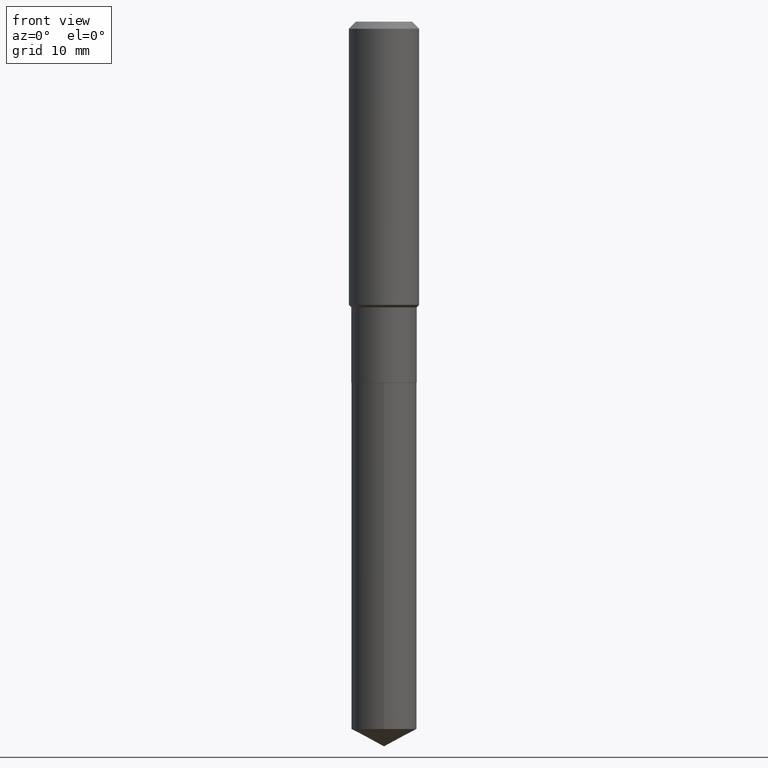
[diagram: clean part render]
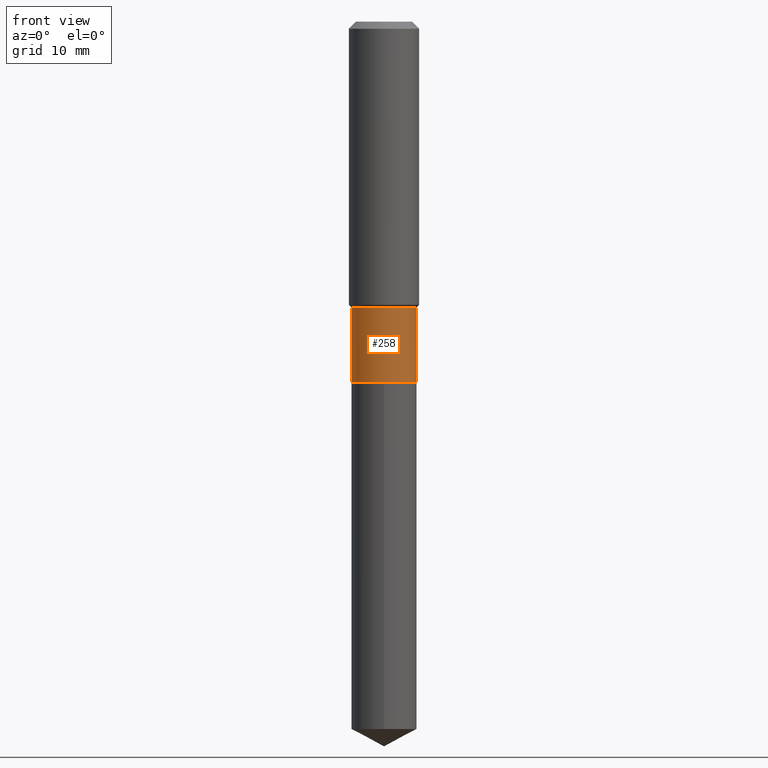
[diagram: same view with one face highlighted and labeled with its STEP entity id]
A machine part, front view. The second image highlights one B-rep face of the part: STEP entity #258.
In plain terms, the highlighted cylindrical surface (edge-blend (fillet) strip) has radius 4.6495 mm, axis along (-0, 0, 1).
Its self-contained STEP definition (entity closure, byte-faithful):
#2 = FACE_OUTER_BOUND ( 'NONE', #45, .T. ) ;
#21 = CIRCLE ( 'NONE', #154, 0.1830499999999999905 ) ;
#29 = LINE ( 'NONE', #485, #479 ) ;
#37 = CARTESIAN_POINT ( 'NONE',  ( 4.937646066568409466E-29, -7.049649971258195757E-15, -2.019099999999999895 ) ) ;
#45 = EDGE_LOOP ( 'NONE', ( #155, #63, #422, #217 ) ) ;
#54 = DIRECTION ( 'NONE',  ( -2.445468806185136877E-29, 3.491481338843145188E-15, 1.000000000000000000 ) ) ;
#63 = ORIENTED_EDGE ( 'NONE', *, *, #305, .T. ) ;
#79 = VERTEX_POINT ( 'NONE', #442 ) ;
#87 = LINE ( 'NONE', #390, #109 ) ;
#103 = EDGE_CURVE ( 'NONE', #400, #79, #29, .T. ) ;
#107 = DIRECTION ( 'NONE',  ( -2.445468806185136597E-29, 3.491481338843145583E-15, 1.000000000000000000 ) ) ;
#109 = VECTOR ( 'NONE', #54, 39.37007874015748143 ) ;
#122 = DIRECTION ( 'NONE',  ( -2.445468806185136597E-29, 3.491481338843145583E-15, 1.000000000000000000 ) ) ;
#141 = DIRECTION ( 'NONE',  ( -2.445468806185136877E-29, 3.491481338843145188E-15, 1.000000000000000000 ) ) ;
#142 = DIRECTION ( 'NONE',  ( 1.000000000000000000, -6.982962677686265922E-15, 4.876176775795935232E-29 ) ) ;
#145 = DIRECTION ( 'NONE',  ( 1.000000000000000000, -6.982962677686265922E-15, 0.000000000000000000 ) ) ;
#154 = AXIS2_PLACEMENT_3D ( 'NONE', #37, #187, #145 ) ;
#155 = ORIENTED_EDGE ( 'NONE', *, *, #435, .F. ) ;
#187 = DIRECTION ( 'NONE',  ( -2.445468806185136597E-29, 3.491481338843145583E-15, 1.000000000000000000 ) ) ;
#201 = DIRECTION ( 'NONE',  ( 1.000000000000000000, -6.982962677686267499E-15, 0.000000000000000000 ) ) ;
#203 = CIRCLE ( 'NONE', #474, 0.1830499999999999350 ) ;
#217 = ORIENTED_EDGE ( 'NONE', *, *, #399, .F. ) ;
#235 = VERTEX_POINT ( 'NONE', #265 ) ;
#258 = ADVANCED_FACE ( 'NONE', ( #2 ), #414, .T. ) ;
#265 = CARTESIAN_POINT ( 'NONE',  ( -0.1830499999999999350, -5.014917541957560996E-15, -1.598600000000000021 ) ) ;
#279 = VERTEX_POINT ( 'NONE', #307 ) ;
#281 = AXIS2_PLACEMENT_3D ( 'NONE', #339, #107, #142 ) ;
#305 = EDGE_CURVE ( 'NONE', #279, #400, #21, .T. ) ;
#307 = CARTESIAN_POINT ( 'NONE',  ( -0.1830499999999999905, -5.014917541957560996E-15, -2.019099999999999895 ) ) ;
#339 = CARTESIAN_POINT ( 'NONE',  ( 0.000000000000000000, 0.000000000000000000, 0.000000000000000000 ) ) ;
#359 = CARTESIAN_POINT ( 'NONE',  ( 0.1830499999999999905, -8.327881289408665635E-15, -2.019099999999999895 ) ) ;
#390 = CARTESIAN_POINT ( 'NONE',  ( -0.1830499999999999905, 1.300648477808863323E-15, -9.004110682711603988E-30 ) ) ;
#399 = EDGE_CURVE ( 'NONE', #235, #79, #203, .T. ) ;
#400 = VERTEX_POINT ( 'NONE', #359 ) ;
#414 = CYLINDRICAL_SURFACE ( 'NONE', #281, 0.1830499999999999905 ) ;
#422 = ORIENTED_EDGE ( 'NONE', *, *, #103, .T. ) ;
#435 = EDGE_CURVE ( 'NONE', #279, #235, #87, .T. ) ;
#442 = CARTESIAN_POINT ( 'NONE',  ( 0.1830499999999999350, -6.859713386425123547E-15, -1.598600000000000021 ) ) ;
#464 = CARTESIAN_POINT ( 'NONE',  ( 3.909326433567559047E-29, -5.581482068274652880E-15, -1.598600000000000021 ) ) ;
#474 = AXIS2_PLACEMENT_3D ( 'NONE', #464, #122, #201 ) ;
#479 = VECTOR ( 'NONE', #141, 39.37007874015748143 ) ;
#485 = CARTESIAN_POINT ( 'NONE',  ( 0.1830499999999999905, -1.278231318150470864E-15, 8.925841588094459454E-30 ) ) ;